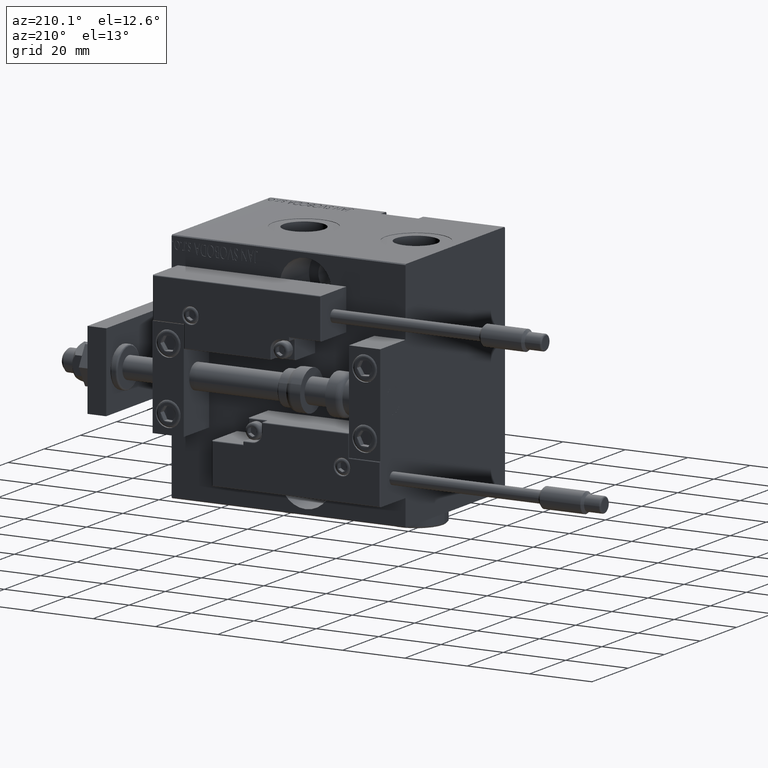
[diagram: clean part render]
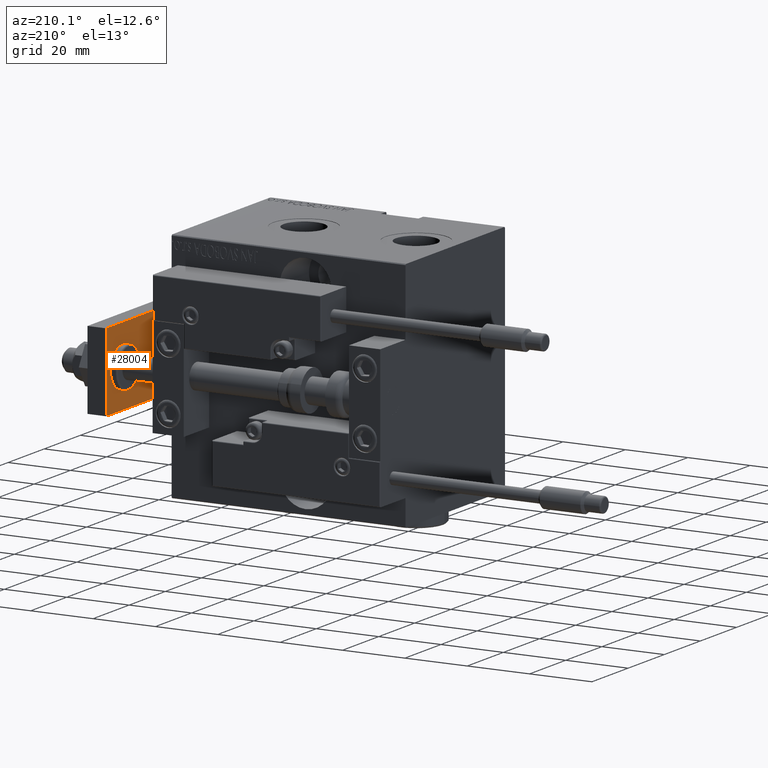
[diagram: same view with one face highlighted and labeled with its STEP entity id]
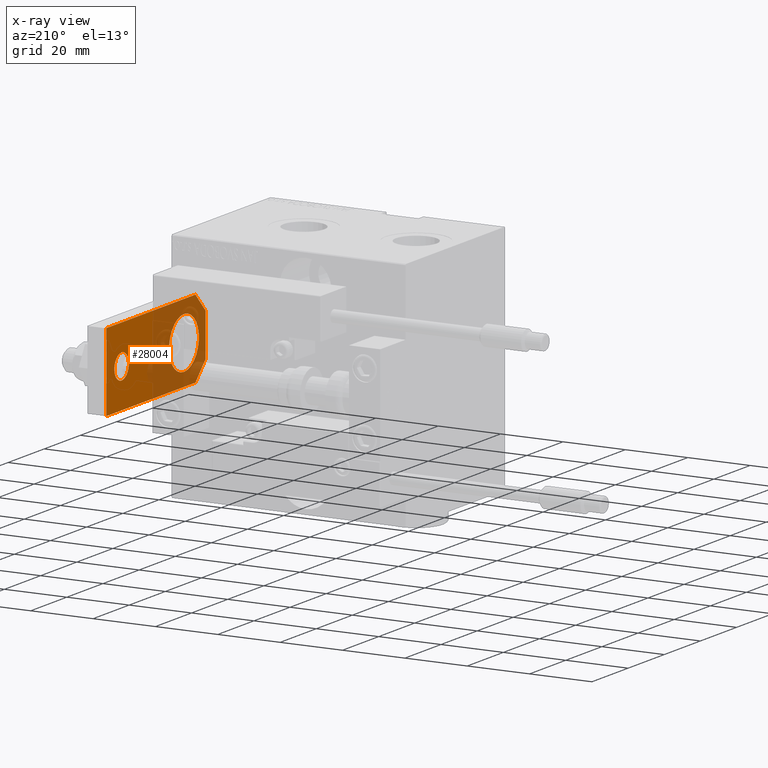
[diagram: x-ray of the same camera — body ghosted, the highlighted face saturated]
A machine part, auxiliary view. The second image highlights one B-rep face of the part: STEP entity #28004.
The next image is the same camera in x-ray: the body ghosted, the highlighted face saturated — about 47% of this face is hidden behind the body in this view.
In plain terms, the highlighted planar face has unit normal (1, 0, -0).
Its self-contained STEP definition (entity closure, byte-faithful):
#870 = DIRECTION ( 'NONE',  ( 0.000000000000000000, 0.000000000000000000, 1.000000000000000000 ) ) ;
#912 = EDGE_CURVE ( 'NONE', #7085, #30353, #11092, .T. ) ;
#917 = VERTEX_POINT ( 'NONE', #34432 ) ;
#2057 = DIRECTION ( 'NONE',  ( 0.000000000000000000, 0.000000000000000000, 1.000000000000000000 ) ) ;
#2464 = DIRECTION ( 'NONE',  ( 0.000000000000000000, 0.000000000000000000, 1.000000000000000000 ) ) ;
#2764 = DIRECTION ( 'NONE',  ( 1.000000000000000000, 0.000000000000000000, 0.000000000000000000 ) ) ;
#2813 = DIRECTION ( 'NONE',  ( -0.7071067811865467956, 0.7071067811865483499, -0.000000000000000000 ) ) ;
#2943 = CARTESIAN_POINT ( 'NONE',  ( 12.50000000000000355, 5.659999999999991260, 0.000000000000000000 ) ) ;
#3932 = LINE ( 'NONE', #31394, #6533 ) ;
#4008 = EDGE_LOOP ( 'NONE', ( #12668, #26886, #42180, #36383, #47510, #34076 ) ) ;
#4164 = VECTOR ( 'NONE', #2813, 1000.000000000000000 ) ;
#5964 = VERTEX_POINT ( 'NONE', #8991 ) ;
#6533 = VECTOR ( 'NONE', #23632, 1000.000000000000000 ) ;
#6776 = EDGE_CURVE ( 'NONE', #17900, #23977, #11823, .T. ) ;
#7085 = VERTEX_POINT ( 'NONE', #36124 ) ;
#7630 = AXIS2_PLACEMENT_3D ( 'NONE', #14736, #2057, #17869 ) ;
#7892 = EDGE_CURVE ( 'NONE', #22559, #9529, #22470, .T. ) ;
#8338 = DIRECTION ( 'NONE',  ( -0.000000000000000000, 0.000000000000000000, 1.000000000000000000 ) ) ;
#8991 = CARTESIAN_POINT ( 'NONE',  ( 4.000000000000000888, 46.50000000000000000, 0.000000000000000000 ) ) ;
#9263 = VECTOR ( 'NONE', #23177, 1000.000000000000000 ) ;
#9456 = EDGE_CURVE ( 'NONE', #9529, #22559, #44062, .T. ) ;
#9529 = VERTEX_POINT ( 'NONE', #46570 ) ;
#10060 = LINE ( 'NONE', #46555, #37982 ) ;
#10745 = VECTOR ( 'NONE', #30154, 1000.000000000000114 ) ;
#11044 = DIRECTION ( 'NONE',  ( 0.000000000000000000, 0.000000000000000000, 1.000000000000000000 ) ) ;
#11092 = LINE ( 'NONE', #38323, #4164 ) ;
#11823 = LINE ( 'NONE', #35665, #40638 ) ;
#12555 = LINE ( 'NONE', #42852, #9263 ) ;
#12668 = ORIENTED_EDGE ( 'NONE', *, *, #30101, .F. ) ;
#13367 = DIRECTION ( 'NONE',  ( 1.000000000000000000, 0.000000000000000000, 0.000000000000000000 ) ) ;
#13869 = CARTESIAN_POINT ( 'NONE',  ( -9.629649721936179265E-32, 11.99999999999999645, 0.000000000000000000 ) ) ;
#14363 = ORIENTED_EDGE ( 'NONE', *, *, #7892, .T. ) ;
#14505 = VERTEX_POINT ( 'NONE', #14556 ) ;
#14556 = CARTESIAN_POINT ( 'NONE',  ( 6.839999999999998970, 4.814824860968089633E-32, 0.000000000000000000 ) ) ;
#14736 = CARTESIAN_POINT ( 'NONE',  ( -9.629649721936179265E-32, 11.99999999999999645, 0.000000000000000000 ) ) ;
#16640 = FACE_OUTER_BOUND ( 'NONE', #4008, .T. ) ;
#17337 = EDGE_LOOP ( 'NONE', ( #38041, #24981 ) ) ;
#17869 = DIRECTION ( 'NONE',  ( 1.000000000000000000, 0.000000000000000000, 0.000000000000000000 ) ) ;
#17900 = VERTEX_POINT ( 'NONE', #41595 ) ;
#20518 = FACE_BOUND ( 'NONE', #23645, .T. ) ;
#22470 = CIRCLE ( 'NONE', #37380, 8.250000000000000000 ) ;
#22559 = VERTEX_POINT ( 'NONE', #28974 ) ;
#23177 = DIRECTION ( 'NONE',  ( -1.000000000000000000, 0.000000000000000000, 0.000000000000000000 ) ) ;
#23632 = DIRECTION ( 'NONE',  ( -9.462128050782584375E-17, -1.000000000000000000, 0.000000000000000000 ) ) ;
#23645 = EDGE_LOOP ( 'NONE', ( #36911, #14363 ) ) ;
#23931 = CARTESIAN_POINT ( 'NONE',  ( -1.432611055310774642E-16, 46.50000000000000000, 0.000000000000000000 ) ) ;
#23977 = VERTEX_POINT ( 'NONE', #48881 ) ;
#24981 = ORIENTED_EDGE ( 'NONE', *, *, #36669, .T. ) ;
#26053 = CARTESIAN_POINT ( 'NONE',  ( -4.000000000000000888, 46.50000000000000000, 0.000000000000000000 ) ) ;
#26544 = AXIS2_PLACEMENT_3D ( 'NONE', #50662, #11044, #2764 ) ;
#26886 = ORIENTED_EDGE ( 'NONE', *, *, #912, .T. ) ;
#28004 = ADVANCED_FACE ( 'NONE', ( #16640, #31653, #20518 ), #39952, .F. ) ;
#28974 = CARTESIAN_POINT ( 'NONE',  ( 8.250000000000000000, 11.99999999999999822, 0.000000000000000000 ) ) ;
#29945 = EDGE_CURVE ( 'NONE', #917, #30353, #3932, .T. ) ;
#30101 = EDGE_CURVE ( 'NONE', #7085, #14505, #10060, .T. ) ;
#30154 = DIRECTION ( 'NONE',  ( -0.7071067811865483499, -0.7071067811865465735, -0.000000000000000000 ) ) ;
#30353 = VERTEX_POINT ( 'NONE', #36201 ) ;
#30595 = AXIS2_PLACEMENT_3D ( 'NONE', #23931, #870, #32478 ) ;
#31394 = CARTESIAN_POINT ( 'NONE',  ( -12.49999999999999822, 55.00000000000000000, 0.000000000000000000 ) ) ;
#31653 = FACE_BOUND ( 'NONE', #17337, .T. ) ;
#31678 = EDGE_CURVE ( 'NONE', #17900, #14505, #41817, .T. ) ;
#32478 = DIRECTION ( 'NONE',  ( 1.000000000000000000, 0.000000000000000000, 0.000000000000000000 ) ) ;
#33895 = DIRECTION ( 'NONE',  ( 1.000000000000000000, 0.000000000000000000, 0.000000000000000000 ) ) ;
#34076 = ORIENTED_EDGE ( 'NONE', *, *, #31678, .T. ) ;
#34432 = CARTESIAN_POINT ( 'NONE',  ( -12.49999999999999822, 55.00000000000000000, 0.000000000000000000 ) ) ;
#34675 = EDGE_CURVE ( 'NONE', #43790, #5964, #42179, .T. ) ;
#35641 = CIRCLE ( 'NONE', #26544, 4.000000000000000888 ) ;
#35665 = CARTESIAN_POINT ( 'NONE',  ( 12.50000000000000355, 4.814824860968089633E-32, 0.000000000000000000 ) ) ;
#36124 = CARTESIAN_POINT ( 'NONE',  ( -6.840000000000012292, 4.814824860968089633E-32, 0.000000000000000000 ) ) ;
#36201 = CARTESIAN_POINT ( 'NONE',  ( -12.50000000000000355, 5.660000000000005471, 0.000000000000000000 ) ) ;
#36278 = AXIS2_PLACEMENT_3D ( 'NONE', #43305, #8338, #47446 ) ;
#36383 = ORIENTED_EDGE ( 'NONE', *, *, #40179, .F. ) ;
#36669 = EDGE_CURVE ( 'NONE', #5964, #43790, #35641, .T. ) ;
#36911 = ORIENTED_EDGE ( 'NONE', *, *, #9456, .T. ) ;
#37380 = AXIS2_PLACEMENT_3D ( 'NONE', #13869, #2464, #13367 ) ;
#37982 = VECTOR ( 'NONE', #33895, 1000.000000000000000 ) ;
#38041 = ORIENTED_EDGE ( 'NONE', *, *, #34675, .T. ) ;
#38323 = CARTESIAN_POINT ( 'NONE',  ( -6.840000000000012292, 4.814824860968089633E-32, 0.000000000000000000 ) ) ;
#39952 = PLANE ( 'NONE',  #36278 ) ;
#40179 = EDGE_CURVE ( 'NONE', #23977, #917, #12555, .T. ) ;
#40638 = VECTOR ( 'NONE', #43424, 1000.000000000000000 ) ;
#41595 = CARTESIAN_POINT ( 'NONE',  ( 12.50000000000000355, 5.659999999999991260, 0.000000000000000000 ) ) ;
#41817 = LINE ( 'NONE', #2943, #10745 ) ;
#42179 = CIRCLE ( 'NONE', #30595, 4.000000000000000888 ) ;
#42180 = ORIENTED_EDGE ( 'NONE', *, *, #29945, .F. ) ;
#42852 = CARTESIAN_POINT ( 'NONE',  ( 12.50000000000000000, 55.00000000000000000, 0.000000000000000000 ) ) ;
#43305 = CARTESIAN_POINT ( 'NONE',  ( 0.000000000000000000, 0.000000000000000000, 0.000000000000000000 ) ) ;
#43424 = DIRECTION ( 'NONE',  ( -6.308085367188389994E-17, 1.000000000000000000, 0.000000000000000000 ) ) ;
#43790 = VERTEX_POINT ( 'NONE', #26053 ) ;
#44062 = CIRCLE ( 'NONE', #7630, 8.250000000000000000 ) ;
#46555 = CARTESIAN_POINT ( 'NONE',  ( -12.50000000000000355, 4.814824860968089633E-32, 0.000000000000000000 ) ) ;
#46570 = CARTESIAN_POINT ( 'NONE',  ( -8.250000000000000000, 11.99999999999999645, 0.000000000000000000 ) ) ;
#47446 = DIRECTION ( 'NONE',  ( 1.000000000000000000, 0.000000000000000000, 0.000000000000000000 ) ) ;
#47510 = ORIENTED_EDGE ( 'NONE', *, *, #6776, .F. ) ;
#48881 = CARTESIAN_POINT ( 'NONE',  ( 12.50000000000000000, 55.00000000000000000, 0.000000000000000000 ) ) ;
#50662 = CARTESIAN_POINT ( 'NONE',  ( -1.432611055310774642E-16, 46.50000000000000000, 0.000000000000000000 ) ) ;